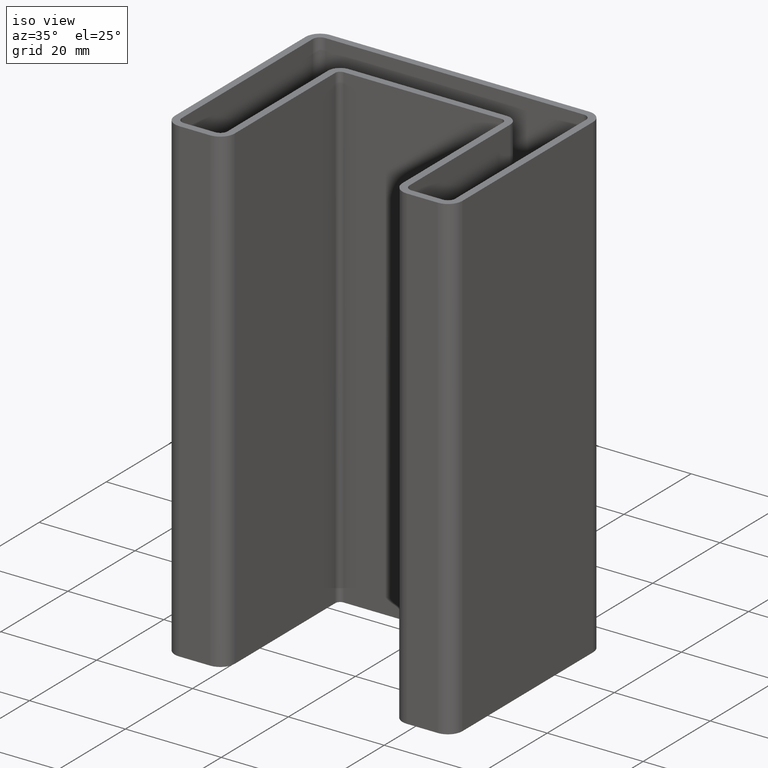
[diagram: clean part render]
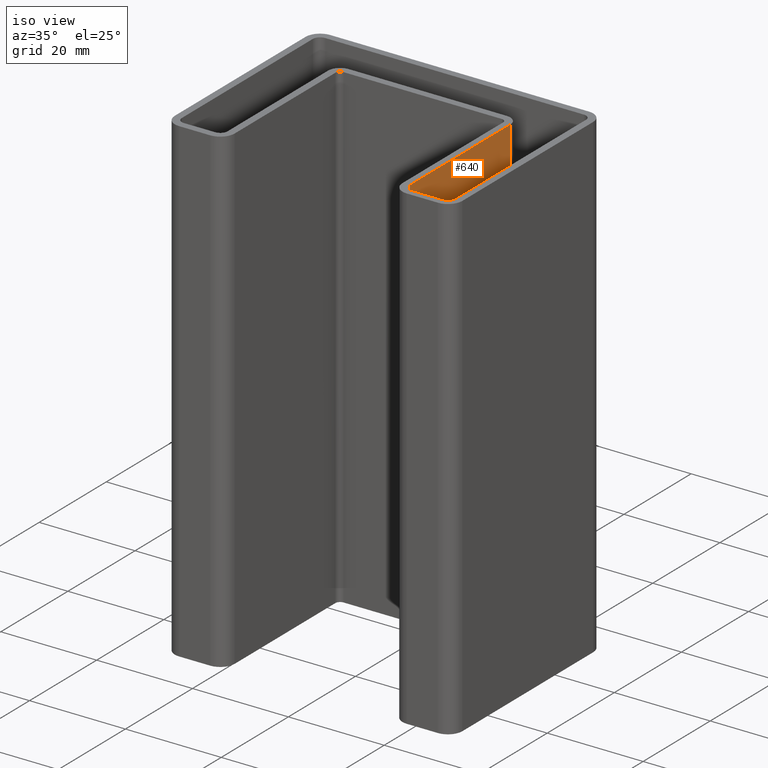
[diagram: same view with one face highlighted and labeled with its STEP entity id]
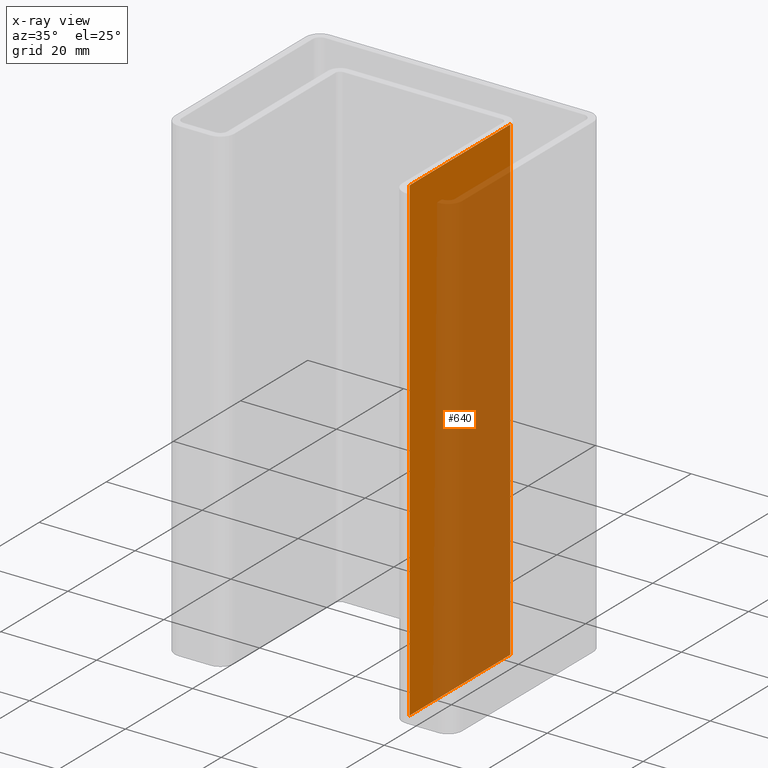
[diagram: x-ray of the same camera — body ghosted, the highlighted face saturated]
A machine part, iso view. The second image highlights one B-rep face of the part: STEP entity #640.
The next image is the same camera in x-ray: the body ghosted, the highlighted face saturated — about 69% of this face is hidden behind the body in this view.
In plain terms, the highlighted planar face has unit normal (-1, -0, 0).
Its self-contained STEP definition (entity closure, byte-faithful):
#104=ORIENTED_EDGE('',*,*,#295,.F.);
#105=ORIENTED_EDGE('',*,*,#279,.F.);
#106=ORIENTED_EDGE('',*,*,#296,.F.);
#107=ORIENTED_EDGE('',*,*,#297,.F.);
#279=EDGE_CURVE('',#375,#361,#431,.T.);
#295=EDGE_CURVE('',#361,#390,#439,.F.);
#296=EDGE_CURVE('',#391,#375,#440,.F.);
#297=EDGE_CURVE('',#390,#391,#441,.T.);
#361=VERTEX_POINT('',#962);
#375=VERTEX_POINT('',#990);
#390=VERTEX_POINT('',#1023);
#391=VERTEX_POINT('',#1025);
#431=LINE('',#991,#495);
#439=LINE('',#1022,#503);
#440=LINE('',#1024,#504);
#441=LINE('',#1026,#505);
#495=VECTOR('',#784,1000.);
#503=VECTOR('',#810,1000.);
#504=VECTOR('',#811,1000.);
#505=VECTOR('',#812,1000.);
#551=EDGE_LOOP('',(#104,#105,#106,#107));
#587=FACE_BOUND('',#551,.T.);
#622=PLANE('',#703);
#640=ADVANCED_FACE('',(#587),#622,.F.);
#703=AXIS2_PLACEMENT_3D('',#1021,#808,#809);
#784=DIRECTION('',(0.,1.,0.));
#808=DIRECTION('',(-1.,-2.61228946970625E-16,0.));
#809=DIRECTION('',(-2.61228946970625E-16,1.,0.));
#810=DIRECTION('',(0.,0.,1.));
#811=DIRECTION('',(0.,0.,-1.));
#812=DIRECTION('',(0.,-1.,0.));
#962=CARTESIAN_POINT('',(19.00000000001,-1.,50.6476146399861));
#990=CARTESIAN_POINT('',(19.00000000001,-31.,50.6476146399861));
#991=CARTESIAN_POINT('',(19.00000000001,-4.03237410070937,50.6476146399861));
#1021=CARTESIAN_POINT('',(19.,1.00000000000002,50.6476146399861));
#1022=CARTESIAN_POINT('',(19.,-1.,50.6476146399861));
#1023=CARTESIAN_POINT('',(19.00000000001,-1.,-49.3523853600239));
#1024=CARTESIAN_POINT('',(19.,-31.,50.6476146399861));
#1025=CARTESIAN_POINT('',(19.00000000001,-31.,-49.3523853600239));
#1026=CARTESIAN_POINT('',(19.00000000001,-4.03237410070937,-49.3523853600239));